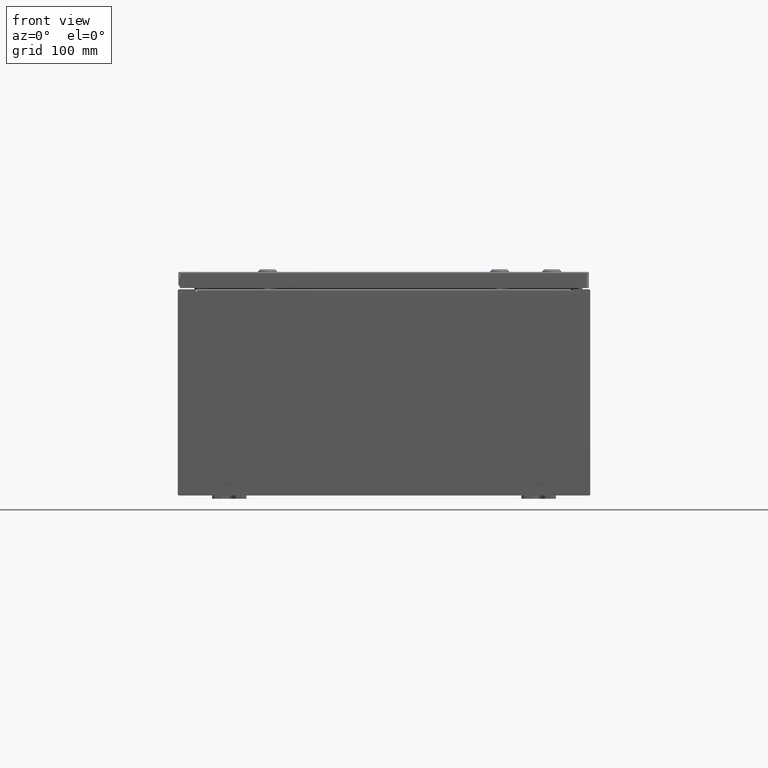
[diagram: clean part render]
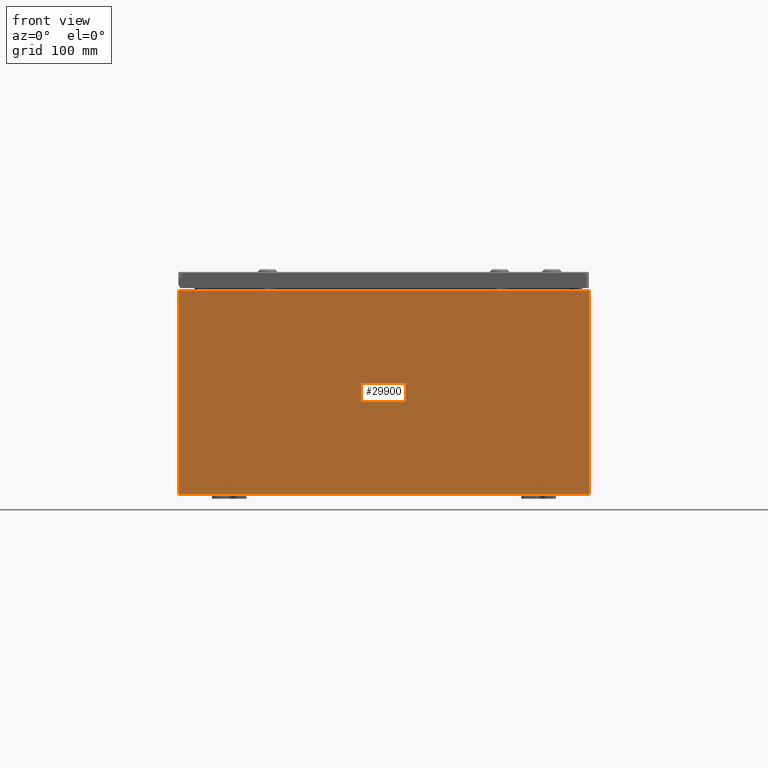
[diagram: same view with one face highlighted and labeled with its STEP entity id]
A machine part, front view. The second image highlights one B-rep face of the part: STEP entity #29900.
In plain terms, the highlighted planar face has unit normal (-0, 1, -0).
Its self-contained STEP definition (entity closure, byte-faithful):
#331 = VERTEX_POINT ( 'NONE', #2034 ) ;
#1069 = VERTEX_POINT ( 'NONE', #30299 ) ;
#1668 = EDGE_CURVE ( 'NONE', #55705, #331, #33165, .T. ) ;
#2034 = CARTESIAN_POINT ( 'NONE',  ( -10.92454999999999800, 0.0000000000000000000, 5.925300000000000000 ) ) ;
#2861 = VERTEX_POINT ( 'NONE', #17215 ) ;
#2926 = EDGE_CURVE ( 'NONE', #21782, #2861, #38486, .T. ) ;
#2969 = VECTOR ( 'NONE', #53527, 39.37007874015748100 ) ;
#3167 = DIRECTION ( 'NONE',  ( 0.0000000000000000000, 0.0000000000000000000, 1.000000000000000000 ) ) ;
#4498 = LINE ( 'NONE', #48508, #2969 ) ;
#4924 = EDGE_CURVE ( 'NONE', #37968, #62391, #60015, .T. ) ;
#4994 = FACE_OUTER_BOUND ( 'NONE', #55397, .T. ) ;
#5654 = ORIENTED_EDGE ( 'NONE', *, *, #37227, .F. ) ;
#6908 = AXIS2_PLACEMENT_3D ( 'NONE', #35324, #40894, #11254 ) ;
#8189 = ORIENTED_EDGE ( 'NONE', *, *, #10536, .F. ) ;
#8504 = CARTESIAN_POINT ( 'NONE',  ( -11.92530000000000000, 0.0000000000000000000, 5.925300000000000000 ) ) ;
#8815 = EDGE_CURVE ( 'NONE', #1069, #11581, #45118, .T. ) ;
#9020 = EDGE_CURVE ( 'NONE', #11581, #55705, #63642, .T. ) ;
#9880 = EDGE_CURVE ( 'NONE', #62391, #38018, #22650, .T. ) ;
#9933 = DIRECTION ( 'NONE',  ( 0.0000000000000000000, 0.0000000000000000000, -1.000000000000000000 ) ) ;
#10405 = CARTESIAN_POINT ( 'NONE',  ( -10.92454999999999800, 0.0000000000000000000, 5.874950000000001000 ) ) ;
#10536 = EDGE_CURVE ( 'NONE', #17364, #21782, #40349, .T. ) ;
#11254 = DIRECTION ( 'NONE',  ( 0.0000000000000000000, 0.0000000000000000000, -1.000000000000000000 ) ) ;
#11581 = VERTEX_POINT ( 'NONE', #24222 ) ;
#12342 = EDGE_CURVE ( 'NONE', #37968, #2861, #49513, .T. ) ;
#14466 = VERTEX_POINT ( 'NONE', #58098 ) ;
#14499 = EDGE_CURVE ( 'NONE', #14466, #1069, #4498, .T. ) ;
#15837 = CARTESIAN_POINT ( 'NONE',  ( 10.88720000000000200, 0.0000000000000000000, 5.874950000000001000 ) ) ;
#15970 = CARTESIAN_POINT ( 'NONE',  ( 10.92455000000000000, 0.0000000000000000000, 5.874950000000001000 ) ) ;
#16203 = ORIENTED_EDGE ( 'NONE', *, *, #2926, .F. ) ;
#16923 = ORIENTED_EDGE ( 'NONE', *, *, #9020, .T. ) ;
#17215 = CARTESIAN_POINT ( 'NONE',  ( 10.88720000000000200, 0.0000000000000000000, 5.912300000000001000 ) ) ;
#17238 = VECTOR ( 'NONE', #41318, 39.37007874015748100 ) ;
#17364 = VERTEX_POINT ( 'NONE', #15970 ) ;
#17702 = VECTOR ( 'NONE', #9933, 39.37007874015748100 ) ;
#17754 = ORIENTED_EDGE ( 'NONE', *, *, #63533, .F. ) ;
#18174 = PLANE ( 'NONE',  #48766 ) ;
#19752 = CARTESIAN_POINT ( 'NONE',  ( 10.92455000000000000, 0.0000000000000000000, 5.925300000000001800 ) ) ;
#20295 = DIRECTION ( 'NONE',  ( 1.000000000000000000, 0.0000000000000000000, 4.581600452255731000E-017 ) ) ;
#20493 = DIRECTION ( 'NONE',  ( 0.0000000000000000000, 0.0000000000000000000, 1.000000000000000000 ) ) ;
#20549 = VECTOR ( 'NONE', #37287, 39.37007874015748100 ) ;
#20638 = CARTESIAN_POINT ( 'NONE',  ( 10.88720000000000200, 0.0000000000000000000, 0.0000000000000000000 ) ) ;
#21782 = VERTEX_POINT ( 'NONE', #15837 ) ;
#22062 = LINE ( 'NONE', #22986, #59949 ) ;
#22650 = CIRCLE ( 'NONE', #6908, 0.01867499999999949400 ) ;
#22986 = CARTESIAN_POINT ( 'NONE',  ( -10.92454999999999800, -0.0000000000000000000, 0.0000000000000000000 ) ) ;
#23146 = ORIENTED_EDGE ( 'NONE', *, *, #33578, .T. ) ;
#23210 = DIRECTION ( 'NONE',  ( 0.0000000000000000000, -0.0000000000000000000, -1.000000000000000000 ) ) ;
#23317 = VERTEX_POINT ( 'NONE', #19752 ) ;
#24222 = CARTESIAN_POINT ( 'NONE',  ( -11.92530000000000000, 0.0000000000000000000, -5.925299999999999100 ) ) ;
#24885 = CARTESIAN_POINT ( 'NONE',  ( -10.88720000000000000, -0.0000000000000000000, 5.874950000000001000 ) ) ;
#25905 = CARTESIAN_POINT ( 'NONE',  ( -11.92530000000000000, 0.0000000000000000000, 5.925300000000000000 ) ) ;
#26314 = CARTESIAN_POINT ( 'NONE',  ( -10.88720000000000000, -0.0000000000000000000, 0.0000000000000000000 ) ) ;
#26361 = DIRECTION ( 'NONE',  ( -0.0000000000000000000, -0.0000000000000000000, 1.000000000000000000 ) ) ;
#26902 = VECTOR ( 'NONE', #20493, 39.37007874015748100 ) ;
#29313 = LINE ( 'NONE', #44609, #17702 ) ;
#29900 = ADVANCED_FACE ( 'NONE', ( #4994 ), #18174, .F. ) ;
#30299 = CARTESIAN_POINT ( 'NONE',  ( 11.92530000000000000, 0.0000000000000000000, -5.925299999999999100 ) ) ;
#30422 = LINE ( 'NONE', #54907, #43583 ) ;
#30562 = ORIENTED_EDGE ( 'NONE', *, *, #8815, .T. ) ;
#32368 = DIRECTION ( 'NONE',  ( 0.0000000000000000000, 0.0000000000000000000, -1.000000000000000000 ) ) ;
#33165 = LINE ( 'NONE', #8504, #46284 ) ;
#33578 = EDGE_CURVE ( 'NONE', #23317, #14466, #30422, .T. ) ;
#35324 = CARTESIAN_POINT ( 'NONE',  ( -10.90587500000000000, 0.0000000000000000000, 5.874950000000001000 ) ) ;
#36357 = DIRECTION ( 'NONE',  ( 1.000000000000000000, 0.0000000000000000000, 4.581600452255731000E-017 ) ) ;
#37227 = EDGE_CURVE ( 'NONE', #38018, #331, #22062, .T. ) ;
#37287 = DIRECTION ( 'NONE',  ( 0.0000000000000000000, 0.0000000000000000000, -1.000000000000000000 ) ) ;
#37968 = VERTEX_POINT ( 'NONE', #54629 ) ;
#38018 = VERTEX_POINT ( 'NONE', #10405 ) ;
#38486 = LINE ( 'NONE', #20638, #26902 ) ;
#39440 = ORIENTED_EDGE ( 'NONE', *, *, #4924, .F. ) ;
#40349 = CIRCLE ( 'NONE', #52158, 0.01867499999999949400 ) ;
#40894 = DIRECTION ( 'NONE',  ( -0.0000000000000000000, 1.000000000000000000, -0.0000000000000000000 ) ) ;
#40947 = ORIENTED_EDGE ( 'NONE', *, *, #12342, .T. ) ;
#41000 = CARTESIAN_POINT ( 'NONE',  ( -11.92530000000000000, 0.0000000000000000000, 5.925300000000000000 ) ) ;
#41318 = DIRECTION ( 'NONE',  ( -1.000000000000000000, -0.0000000000000000000, -0.0000000000000000000 ) ) ;
#43583 = VECTOR ( 'NONE', #20295, 39.37007874015748100 ) ;
#43638 = CARTESIAN_POINT ( 'NONE',  ( -11.92530000000000000, 0.0000000000000000000, -5.925299999999999100 ) ) ;
#44609 = CARTESIAN_POINT ( 'NONE',  ( 10.92455000000000000, 0.0000000000000000000, 0.0000000000000000000 ) ) ;
#45118 = LINE ( 'NONE', #43638, #17238 ) ;
#46284 = VECTOR ( 'NONE', #36357, 39.37007874015748100 ) ;
#48508 = CARTESIAN_POINT ( 'NONE',  ( 11.92530000000000000, 0.0000000000000000000, 5.925300000000001800 ) ) ;
#48533 = DIRECTION ( 'NONE',  ( -0.0000000000000000000, 1.000000000000000000, -0.0000000000000000000 ) ) ;
#48579 = DIRECTION ( 'NONE',  ( 1.000000000000000000, 0.0000000000000000000, 0.0000000000000000000 ) ) ;
#48766 = AXIS2_PLACEMENT_3D ( 'NONE', #57570, #52813, #23210 ) ;
#49504 = ORIENTED_EDGE ( 'NONE', *, *, #9880, .F. ) ;
#49513 = LINE ( 'NONE', #55093, #61145 ) ;
#50515 = VECTOR ( 'NONE', #26361, 39.37007874015748100 ) ;
#50566 = CARTESIAN_POINT ( 'NONE',  ( 10.90587500000000200, 0.0000000000000000000, 5.874950000000001000 ) ) ;
#51771 = ORIENTED_EDGE ( 'NONE', *, *, #14499, .T. ) ;
#52158 = AXIS2_PLACEMENT_3D ( 'NONE', #50566, #48533, #32368 ) ;
#52813 = DIRECTION ( 'NONE',  ( 0.0000000000000000000, -1.000000000000000000, 0.0000000000000000000 ) ) ;
#53527 = DIRECTION ( 'NONE',  ( 0.0000000000000000000, 0.0000000000000000000, -1.000000000000000000 ) ) ;
#54629 = CARTESIAN_POINT ( 'NONE',  ( -10.88720000000000000, -1.707404996040164500E-016, 5.912300000000001000 ) ) ;
#54907 = CARTESIAN_POINT ( 'NONE',  ( -11.92530000000000000, 0.0000000000000000000, 5.925300000000000000 ) ) ;
#55093 = CARTESIAN_POINT ( 'NONE',  ( -10.88720000000000200, -1.707404996040164500E-016, 5.912300000000001000 ) ) ;
#55397 = EDGE_LOOP ( 'NONE', ( #5654, #49504, #39440, #40947, #16203, #8189, #17754, #23146, #51771, #30562, #16923, #56332 ) ) ;
#55705 = VERTEX_POINT ( 'NONE', #41000 ) ;
#56332 = ORIENTED_EDGE ( 'NONE', *, *, #1668, .T. ) ;
#57570 = CARTESIAN_POINT ( 'NONE',  ( 0.0000000000000000000, 0.0000000000000000000, 0.0000000000000000000 ) ) ;
#58098 = CARTESIAN_POINT ( 'NONE',  ( 11.92530000000000000, 0.0000000000000000000, 5.925300000000001800 ) ) ;
#59949 = VECTOR ( 'NONE', #3167, 39.37007874015748100 ) ;
#60015 = LINE ( 'NONE', #26314, #20549 ) ;
#61145 = VECTOR ( 'NONE', #48579, 39.37007874015748100 ) ;
#62391 = VERTEX_POINT ( 'NONE', #24885 ) ;
#63533 = EDGE_CURVE ( 'NONE', #23317, #17364, #29313, .T. ) ;
#63642 = LINE ( 'NONE', #25905, #50515 ) ;